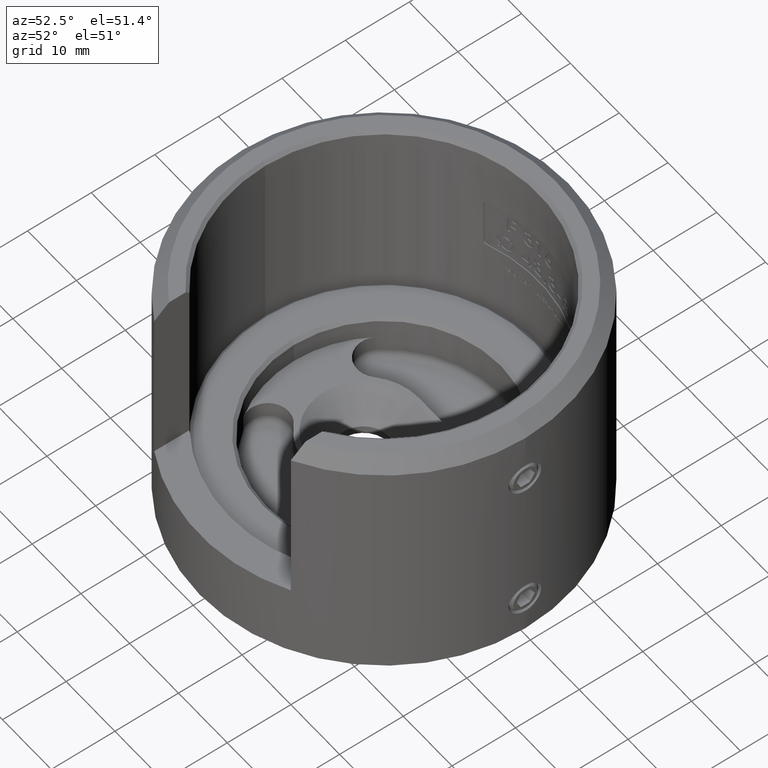
[diagram: clean part render]
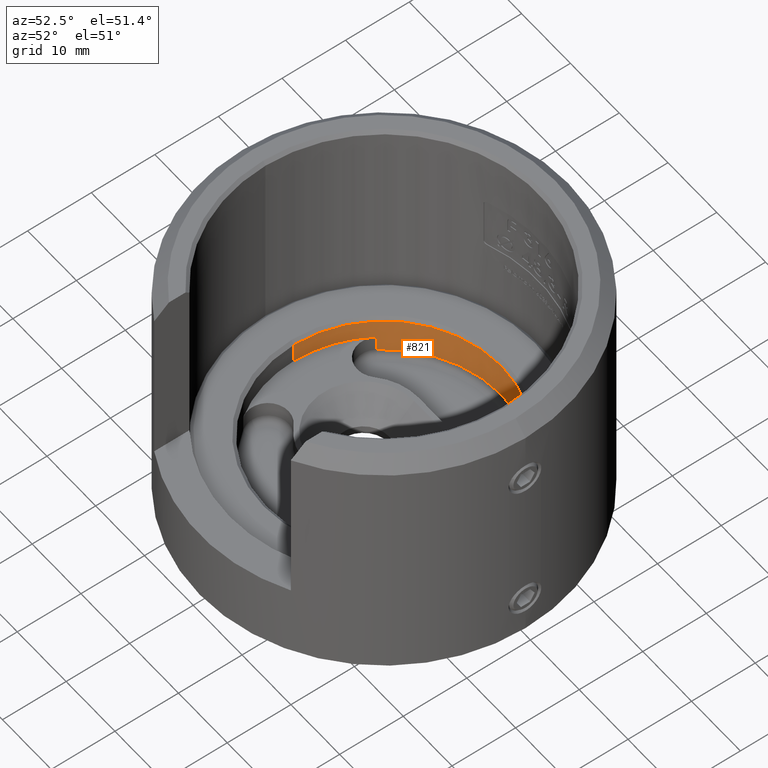
[diagram: same view with one face highlighted and labeled with its STEP entity id]
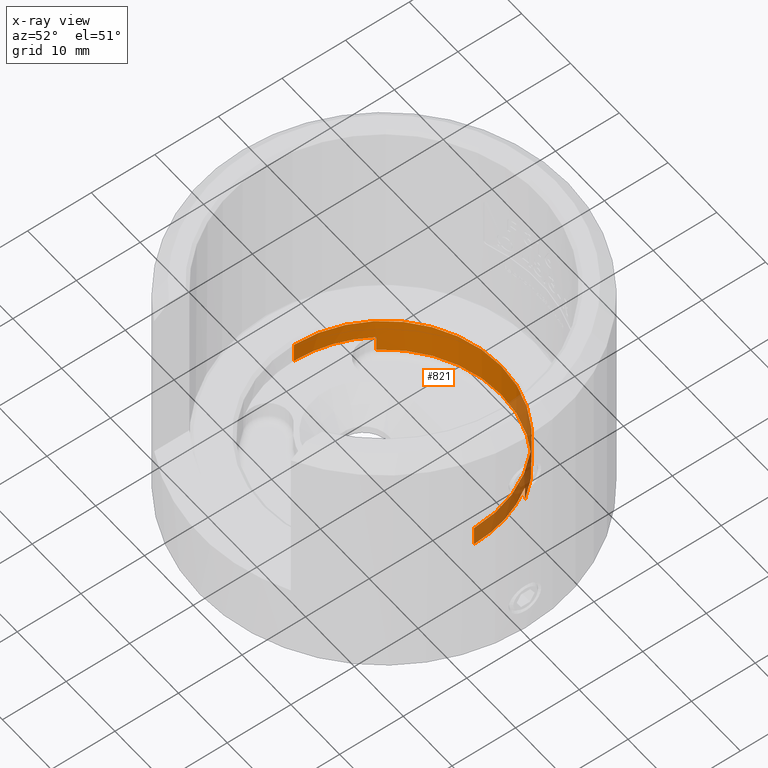
[diagram: x-ray of the same camera — body ghosted, the highlighted face saturated]
A machine part, auxiliary view. The second image highlights one B-rep face of the part: STEP entity #821.
The next image is the same camera in x-ray: the body ghosted, the highlighted face saturated — about 22% of this face is hidden behind the body in this view.
In plain terms, the highlighted cylindrical surface (partial cylindrical patch) has radius 18.45 mm, axis along (0, 0, 1).
Its self-contained STEP definition (entity closure, byte-faithful):
#821 = ADVANCED_FACE ( 'NONE', ( #13053 ), #18931, .F. ) ;
#1153 = ORIENTED_EDGE ( 'NONE', *, *, #15805, .T. ) ;
#1275 = CIRCLE ( 'NONE', #5045, 18.44999999999999900 ) ;
#1599 = CARTESIAN_POINT ( 'NONE',  ( 18.44999999999999900, 0.0000000000000000000, 1.300000000000003400 ) ) ;
#1742 = VERTEX_POINT ( 'NONE', #14069 ) ;
#2544 = EDGE_LOOP ( 'NONE', ( #27849, #24323, #17376, #1153, #21667, #17580, #5151, #21645 ) ) ;
#2705 = EDGE_CURVE ( 'NONE', #13022, #27168, #5751, .T. ) ;
#3204 = DIRECTION ( 'NONE',  ( 0.0000000000000000000, 0.0000000000000000000, 1.000000000000000000 ) ) ;
#3353 = DIRECTION ( 'NONE',  ( -0.0000000000000000000, -0.0000000000000000000, 1.000000000000000000 ) ) ;
#3889 = VERTEX_POINT ( 'NONE', #13144 ) ;
#4820 = LINE ( 'NONE', #13421, #28837 ) ;
#5045 = AXIS2_PLACEMENT_3D ( 'NONE', #7501, #25304, #25397 ) ;
#5151 = ORIENTED_EDGE ( 'NONE', *, *, #15450, .T. ) ;
#5455 = DIRECTION ( 'NONE',  ( -0.0000000000000000000, -0.0000000000000000000, 1.000000000000000000 ) ) ;
#5751 = LINE ( 'NONE', #6442, #9206 ) ;
#6330 = CARTESIAN_POINT ( 'NONE',  ( 0.0000000000000000000, 0.0000000000000000000, 4.499999999999985800 ) ) ;
#6442 = CARTESIAN_POINT ( 'NONE',  ( 15.18941577349957200, 10.47302002575008500, -2.199999999999996600 ) ) ;
#7263 = CARTESIAN_POINT ( 'NONE',  ( -18.44999999999999900, 2.259473344426866300E-015, 4.499999999999985800 ) ) ;
#7501 = CARTESIAN_POINT ( 'NONE',  ( 0.0000000000000000000, 0.0000000000000000000, 1.300000000000003400 ) ) ;
#8089 = VERTEX_POINT ( 'NONE', #27845 ) ;
#8605 = DIRECTION ( 'NONE',  ( -0.0000000000000000000, -0.0000000000000000000, 1.000000000000000000 ) ) ;
#8881 = DIRECTION ( 'NONE',  ( -0.0000000000000000000, -0.0000000000000000000, 1.000000000000000000 ) ) ;
#8895 = CIRCLE ( 'NONE', #9404, 18.44999999999999900 ) ;
#9206 = VECTOR ( 'NONE', #8605, 1000.000000000000000 ) ;
#9404 = AXIS2_PLACEMENT_3D ( 'NONE', #6330, #23951, #21703 ) ;
#9811 = DIRECTION ( 'NONE',  ( 1.000000000000000000, 0.0000000000000000000, 0.0000000000000000000 ) ) ;
#10199 = CARTESIAN_POINT ( 'NONE',  ( 15.18941577349957200, 10.47302002575008500, -1.199999999999996600 ) ) ;
#10514 = DIRECTION ( 'NONE',  ( -0.0000000000000000000, -0.0000000000000000000, 1.000000000000000000 ) ) ;
#10962 = DIRECTION ( 'NONE',  ( -0.0000000000000000000, -0.0000000000000000000, -1.000000000000000000 ) ) ;
#11715 = AXIS2_PLACEMENT_3D ( 'NONE', #24295, #10962, #17747 ) ;
#12492 = EDGE_CURVE ( 'NONE', #3889, #8089, #25729, .T. ) ;
#12772 = CARTESIAN_POINT ( 'NONE',  ( 18.44999999999999900, 0.0000000000000000000, 4.499999999999985800 ) ) ;
#13022 = VERTEX_POINT ( 'NONE', #10199 ) ;
#13053 = FACE_OUTER_BOUND ( 'NONE', #2544, .T. ) ;
#13144 = CARTESIAN_POINT ( 'NONE',  ( -15.18941577349961800, 10.47302002575001700, 1.300000000000003400 ) ) ;
#13318 = VECTOR ( 'NONE', #10514, 1000.000000000000000 ) ;
#13421 = CARTESIAN_POINT ( 'NONE',  ( 18.44999999999999900, 0.0000000000000000000, 1.300000000000003400 ) ) ;
#14069 = CARTESIAN_POINT ( 'NONE',  ( -15.18941577349961800, 10.47302002575001700, -1.199999999999996600 ) ) ;
#15080 = VERTEX_POINT ( 'NONE', #7263 ) ;
#15220 = DIRECTION ( 'NONE',  ( 1.000000000000000000, 0.0000000000000000000, 0.0000000000000000000 ) ) ;
#15450 = EDGE_CURVE ( 'NONE', #27858, #28683, #4820, .T. ) ;
#15805 = EDGE_CURVE ( 'NONE', #1742, #13022, #21851, .T. ) ;
#17376 = ORIENTED_EDGE ( 'NONE', *, *, #28771, .F. ) ;
#17580 = ORIENTED_EDGE ( 'NONE', *, *, #18748, .F. ) ;
#17747 = DIRECTION ( 'NONE',  ( 1.000000000000000000, 8.881784197001252300E-016, 0.0000000000000000000 ) ) ;
#18317 = LINE ( 'NONE', #23338, #19361 ) ;
#18460 = AXIS2_PLACEMENT_3D ( 'NONE', #23686, #3353, #15220 ) ;
#18748 = EDGE_CURVE ( 'NONE', #27858, #27168, #1275, .T. ) ;
#18931 = CYLINDRICAL_SURFACE ( 'NONE', #18460, 18.44999999999999900 ) ;
#19359 = CARTESIAN_POINT ( 'NONE',  ( -15.18941577349961800, 10.47302002575001700, -2.199999999999996600 ) ) ;
#19361 = VECTOR ( 'NONE', #5455, 1000.000000000000000 ) ;
#21332 = LINE ( 'NONE', #19359, #13318 ) ;
#21645 = ORIENTED_EDGE ( 'NONE', *, *, #25500, .T. ) ;
#21667 = ORIENTED_EDGE ( 'NONE', *, *, #2705, .T. ) ;
#21703 = DIRECTION ( 'NONE',  ( -1.000000000000000000, 0.0000000000000000000, 0.0000000000000000000 ) ) ;
#21851 = CIRCLE ( 'NONE', #11715, 18.44999999999999900 ) ;
#23134 = CARTESIAN_POINT ( 'NONE',  ( 0.0000000000000000000, 0.0000000000000000000, 1.300000000000003400 ) ) ;
#23338 = CARTESIAN_POINT ( 'NONE',  ( -18.44999999999999900, 2.259473344426866300E-015, 1.300000000000003400 ) ) ;
#23686 = CARTESIAN_POINT ( 'NONE',  ( 0.0000000000000000000, 0.0000000000000000000, 1.300000000000003400 ) ) ;
#23951 = DIRECTION ( 'NONE',  ( 0.0000000000000000000, 0.0000000000000000000, 1.000000000000000000 ) ) ;
#24078 = EDGE_CURVE ( 'NONE', #8089, #15080, #18317, .T. ) ;
#24123 = AXIS2_PLACEMENT_3D ( 'NONE', #23134, #3204, #9811 ) ;
#24295 = CARTESIAN_POINT ( 'NONE',  ( 0.0000000000000000000, 0.0000000000000000000, -1.199999999999996600 ) ) ;
#24323 = ORIENTED_EDGE ( 'NONE', *, *, #12492, .F. ) ;
#25183 = CARTESIAN_POINT ( 'NONE',  ( 15.18941577349957200, 10.47302002575008500, 1.300000000000003400 ) ) ;
#25304 = DIRECTION ( 'NONE',  ( 0.0000000000000000000, 0.0000000000000000000, 1.000000000000000000 ) ) ;
#25397 = DIRECTION ( 'NONE',  ( 1.000000000000000000, 0.0000000000000000000, 0.0000000000000000000 ) ) ;
#25500 = EDGE_CURVE ( 'NONE', #28683, #15080, #8895, .T. ) ;
#25729 = CIRCLE ( 'NONE', #24123, 18.44999999999999900 ) ;
#27168 = VERTEX_POINT ( 'NONE', #25183 ) ;
#27845 = CARTESIAN_POINT ( 'NONE',  ( -18.44999999999999900, 2.259473344426866300E-015, 1.300000000000003400 ) ) ;
#27849 = ORIENTED_EDGE ( 'NONE', *, *, #24078, .F. ) ;
#27858 = VERTEX_POINT ( 'NONE', #1599 ) ;
#28683 = VERTEX_POINT ( 'NONE', #12772 ) ;
#28771 = EDGE_CURVE ( 'NONE', #1742, #3889, #21332, .T. ) ;
#28837 = VECTOR ( 'NONE', #8881, 1000.000000000000000 ) ;